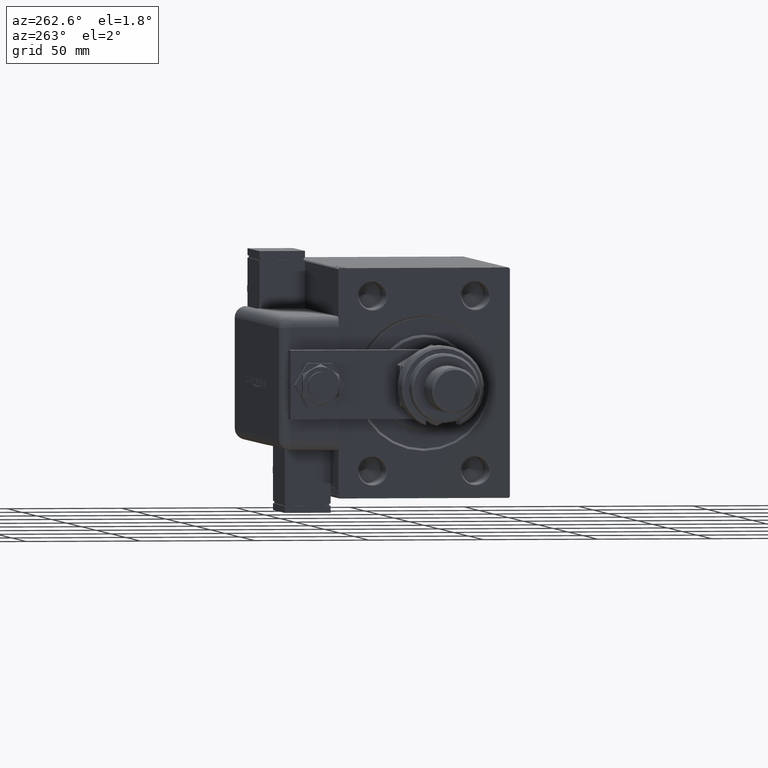
[diagram: clean part render]
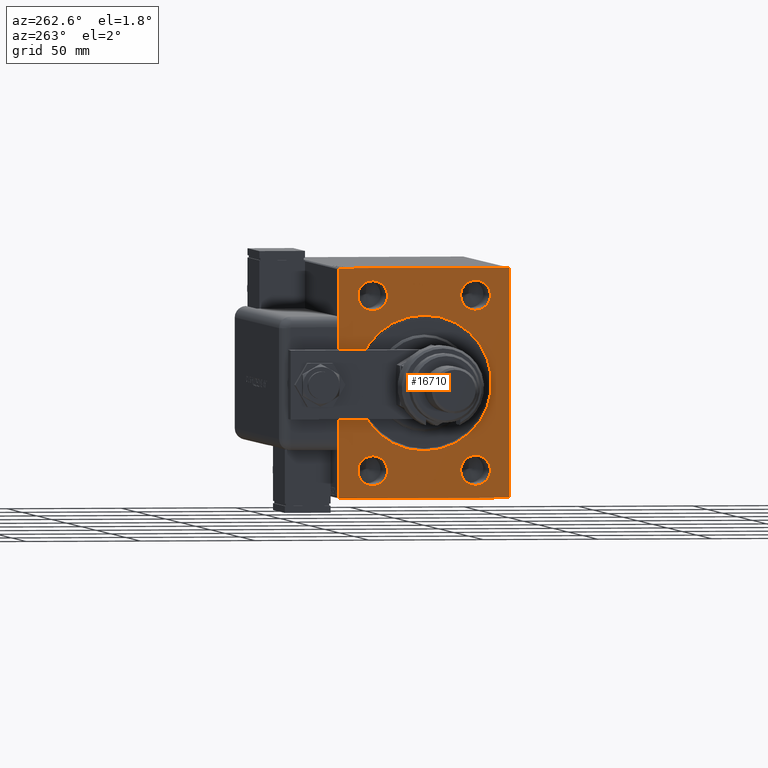
[diagram: same view with one face highlighted and labeled with its STEP entity id]
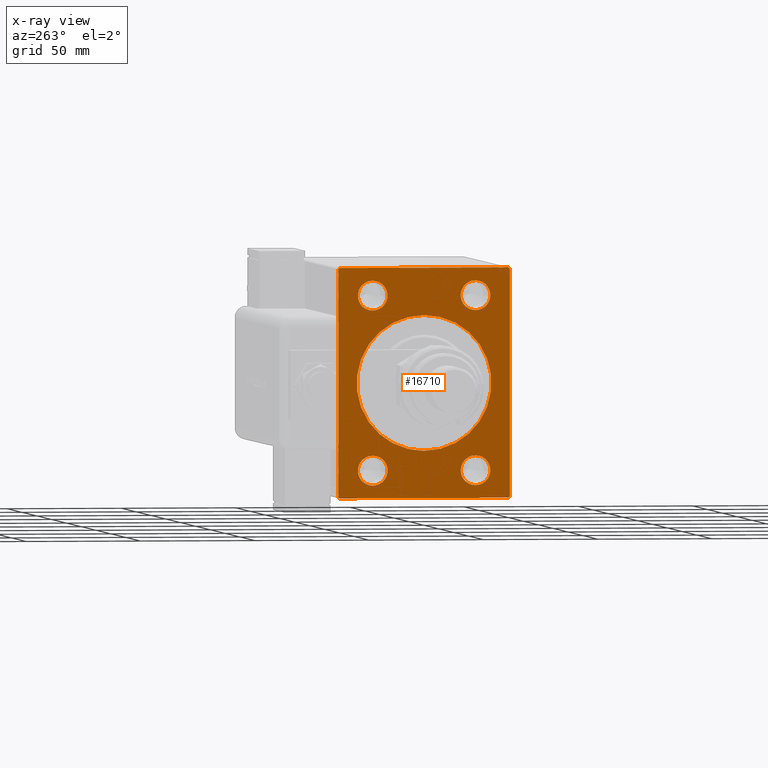
[diagram: x-ray of the same camera — body ghosted, the highlighted face saturated]
A machine part, auxiliary view. The second image highlights one B-rep face of the part: STEP entity #16710.
The next image is the same camera in x-ray: the body ghosted, the highlighted face saturated — about 0% of this face is hidden behind the body in this view.
In plain terms, the highlighted planar face has unit normal (1, 0, 0).
Its self-contained STEP definition (entity closure, byte-faithful):
#592 = VECTOR ( 'NONE', #23178, 1000.000000000000000 ) ;
#1194 = CARTESIAN_POINT ( 'NONE',  ( 0.000000000000000000, -37.50000000000000000, 49.99999999999998579 ) ) ;
#1897 = CARTESIAN_POINT ( 'NONE',  ( 0.000000000000000000, -22.50000000000000000, -31.50000000000000000 ) ) ;
#2077 = ORIENTED_EDGE ( 'NONE', *, *, #51177, .T. ) ;
#2461 = VERTEX_POINT ( 'NONE', #11026 ) ;
#3107 = EDGE_CURVE ( 'NONE', #22739, #49326, #24217, .T. ) ;
#3126 = CARTESIAN_POINT ( 'NONE',  ( 0.000000000000000000, -22.50000000000000000, 37.99999999999999289 ) ) ;
#4232 = ORIENTED_EDGE ( 'NONE', *, *, #54296, .T. ) ;
#4443 = VERTEX_POINT ( 'NONE', #60846 ) ;
#4823 = EDGE_CURVE ( 'NONE', #44282, #43306, #57156, .T. ) ;
#5438 = VERTEX_POINT ( 'NONE', #45120 ) ;
#5454 = CARTESIAN_POINT ( 'NONE',  ( 0.000000000000000000, -22.50000000000000000, -38.00000000000000711 ) ) ;
#5520 = LINE ( 'NONE', #5833, #25838 ) ;
#5833 = CARTESIAN_POINT ( 'NONE',  ( 0.000000000000000000, 37.49999999999999289, 50.00000000000000711 ) ) ;
#6007 = VERTEX_POINT ( 'NONE', #10186 ) ;
#6591 = AXIS2_PLACEMENT_3D ( 'NONE', #33487, #10517, #20094 ) ;
#8284 = EDGE_CURVE ( 'NONE', #52550, #2461, #44867, .T. ) ;
#9456 = ORIENTED_EDGE ( 'NONE', *, *, #23508, .T. ) ;
#10148 = EDGE_CURVE ( 'NONE', #23226, #59065, #51828, .T. ) ;
#10186 = CARTESIAN_POINT ( 'NONE',  ( 0.000000000000000000, 22.50000000000000000, -31.50000000000000000 ) ) ;
#10252 = DIRECTION ( 'NONE',  ( 1.000000000000000000, 0.000000000000000000, 0.000000000000000000 ) ) ;
#10517 = DIRECTION ( 'NONE',  ( 1.000000000000000000, 0.000000000000000000, 0.000000000000000000 ) ) ;
#10546 = DIRECTION ( 'NONE',  ( 1.000000000000000000, 0.000000000000000000, 0.000000000000000000 ) ) ;
#11026 = CARTESIAN_POINT ( 'NONE',  ( 0.000000000000000000, -37.50000000000000000, -49.49999999999997158 ) ) ;
#11789 = VECTOR ( 'NONE', #17654, 1000.000000000000000 ) ;
#12791 = FACE_BOUND ( 'NONE', #43748, .T. ) ;
#12887 = LINE ( 'NONE', #32636, #11789 ) ;
#12990 = VERTEX_POINT ( 'NONE', #37935 ) ;
#13219 = CARTESIAN_POINT ( 'NONE',  ( 0.000000000000000000, 3.612708057484695548E-15, -29.50000000000002842 ) ) ;
#13479 = VECTOR ( 'NONE', #20725, 1000.000000000000000 ) ;
#13566 = CIRCLE ( 'NONE', #49229, 6.500000000000005329 ) ;
#13982 = VERTEX_POINT ( 'NONE', #1897 ) ;
#14044 = PLANE ( 'NONE',  #6591 ) ;
#14244 = CIRCLE ( 'NONE', #22389, 6.500000000000005329 ) ;
#14671 = CARTESIAN_POINT ( 'NONE',  ( 0.000000000000000000, -22.50000000000000000, 37.99999999999999289 ) ) ;
#14911 = EDGE_CURVE ( 'NONE', #23226, #31924, #5520, .T. ) ;
#15608 = CARTESIAN_POINT ( 'NONE',  ( 0.000000000000000000, -37.00000000000000000, -50.00000000000000000 ) ) ;
#15794 = DIRECTION ( 'NONE',  ( 1.000000000000000000, 0.000000000000000000, 0.000000000000000000 ) ) ;
#16229 = DIRECTION ( 'NONE',  ( 0.000000000000000000, 0.000000000000000000, -1.000000000000000000 ) ) ;
#16664 = EDGE_CURVE ( 'NONE', #5438, #21682, #28987, .T. ) ;
#16710 = ADVANCED_FACE ( 'NONE', ( #42426, #12791, #46903, #61900, #57122, #42736 ), #14044, .F. ) ;
#17654 = DIRECTION ( 'NONE',  ( -0.000000000000000000, 0.7071067811865721087, 0.7071067811865230368 ) ) ;
#17917 = CIRCLE ( 'NONE', #51537, 6.500000000000005329 ) ;
#18093 = DIRECTION ( 'NONE',  ( 0.000000000000000000, 0.000000000000000000, -1.000000000000000000 ) ) ;
#18436 = EDGE_CURVE ( 'NONE', #52550, #31924, #12887, .T. ) ;
#19497 = EDGE_LOOP ( 'NONE', ( #44129, #57516 ) ) ;
#19893 = VECTOR ( 'NONE', #34998, 1000.000000000000114 ) ;
#20094 = DIRECTION ( 'NONE',  ( 0.000000000000000000, 0.000000000000000000, -1.000000000000000000 ) ) ;
#20353 = CARTESIAN_POINT ( 'NONE',  ( 0.000000000000000000, -37.00000000000000000, -50.00000000000000000 ) ) ;
#20363 = CARTESIAN_POINT ( 'NONE',  ( 0.000000000000000000, 22.50000000000000000, -38.00000000000000711 ) ) ;
#20725 = DIRECTION ( 'NONE',  ( 0.000000000000000000, -1.387778780781445676E-16, 1.000000000000000000 ) ) ;
#21682 = VERTEX_POINT ( 'NONE', #28130 ) ;
#21708 = ORIENTED_EDGE ( 'NONE', *, *, #30100, .T. ) ;
#22389 = AXIS2_PLACEMENT_3D ( 'NONE', #5454, #10546, #44041 ) ;
#22739 = VERTEX_POINT ( 'NONE', #15608 ) ;
#22758 = EDGE_CURVE ( 'NONE', #13982, #34717, #17917, .T. ) ;
#22969 = DIRECTION ( 'NONE',  ( 0.000000000000000000, 0.000000000000000000, -1.000000000000000000 ) ) ;
#23178 = DIRECTION ( 'NONE',  ( 0.000000000000000000, -0.7071067811865230368, -0.7071067811865721087 ) ) ;
#23226 = VERTEX_POINT ( 'NONE', #59474 ) ;
#23508 = EDGE_CURVE ( 'NONE', #43306, #44282, #32471, .T. ) ;
#23687 = ORIENTED_EDGE ( 'NONE', *, *, #22758, .T. ) ;
#24217 = LINE ( 'NONE', #28361, #26503 ) ;
#25711 = AXIS2_PLACEMENT_3D ( 'NONE', #3126, #51609, #18093 ) ;
#25838 = VECTOR ( 'NONE', #53697, 1000.000000000000000 ) ;
#26503 = VECTOR ( 'NONE', #48458, 1000.000000000000000 ) ;
#26616 = CARTESIAN_POINT ( 'NONE',  ( 0.000000000000000000, 37.50000000000000711, -49.49999999999997158 ) ) ;
#27025 = AXIS2_PLACEMENT_3D ( 'NONE', #14671, #42418, #16229 ) ;
#27676 = CARTESIAN_POINT ( 'NONE',  ( 0.000000000000000000, -22.50000000000000000, -44.50000000000001421 ) ) ;
#27769 = CIRCLE ( 'NONE', #25711, 6.500000000000005329 ) ;
#28130 = CARTESIAN_POINT ( 'NONE',  ( 0.000000000000000000, 22.50000000000000000, 44.50000000000000000 ) ) ;
#28146 = CARTESIAN_POINT ( 'NONE',  ( 0.000000000000000000, -36.99999999999996447, 49.99999999999998579 ) ) ;
#28361 = CARTESIAN_POINT ( 'NONE',  ( 0.000000000000000000, -37.50000000000000000, -50.00000000000000000 ) ) ;
#28659 = EDGE_CURVE ( 'NONE', #51820, #59065, #45588, .T. ) ;
#28932 = CIRCLE ( 'NONE', #27025, 6.500000000000005329 ) ;
#28987 = CIRCLE ( 'NONE', #38122, 6.500000000000005329 ) ;
#29922 = DIRECTION ( 'NONE',  ( 0.000000000000000000, 0.000000000000000000, -1.000000000000000000 ) ) ;
#30100 = EDGE_CURVE ( 'NONE', #36374, #4443, #27769, .T. ) ;
#30536 = CARTESIAN_POINT ( 'NONE',  ( 0.000000000000000000, -22.50000000000000000, 31.49999999999998579 ) ) ;
#31544 = EDGE_CURVE ( 'NONE', #21682, #5438, #13566, .T. ) ;
#31710 = ORIENTED_EDGE ( 'NONE', *, *, #10148, .T. ) ;
#31924 = VERTEX_POINT ( 'NONE', #28146 ) ;
#32363 = DIRECTION ( 'NONE',  ( -0.000000000000000000, 0.7071067811865425767, -0.7071067811865525687 ) ) ;
#32414 = ORIENTED_EDGE ( 'NONE', *, *, #14911, .F. ) ;
#32471 = CIRCLE ( 'NONE', #62897, 29.50000000000002842 ) ;
#32636 = CARTESIAN_POINT ( 'NONE',  ( 0.000000000000000000, -37.50000000000000000, 49.49999999999998579 ) ) ;
#32751 = CARTESIAN_POINT ( 'NONE',  ( 0.000000000000000000, 37.50000000000000711, -49.49999999999997158 ) ) ;
#33487 = CARTESIAN_POINT ( 'NONE',  ( 0.000000000000000000, 0.000000000000000000, 0.000000000000000000 ) ) ;
#34221 = ORIENTED_EDGE ( 'NONE', *, *, #59328, .T. ) ;
#34710 = ORIENTED_EDGE ( 'NONE', *, *, #18436, .T. ) ;
#34717 = VERTEX_POINT ( 'NONE', #27676 ) ;
#34998 = DIRECTION ( 'NONE',  ( -0.000000000000000000, -0.7071067811865474617, 0.7071067811865474617 ) ) ;
#35220 = CARTESIAN_POINT ( 'NONE',  ( 0.000000000000000000, -37.50000000000000000, 49.49999999999998579 ) ) ;
#35805 = ORIENTED_EDGE ( 'NONE', *, *, #4823, .T. ) ;
#36374 = VERTEX_POINT ( 'NONE', #30536 ) ;
#37432 = ORIENTED_EDGE ( 'NONE', *, *, #58144, .T. ) ;
#37452 = CARTESIAN_POINT ( 'NONE',  ( 0.000000000000000000, 36.99999999999999289, 50.00000000000000711 ) ) ;
#37935 = CARTESIAN_POINT ( 'NONE',  ( 0.000000000000000000, 22.50000000000000000, -44.50000000000001421 ) ) ;
#37946 = CARTESIAN_POINT ( 'NONE',  ( 0.000000000000000000, 22.50000000000000000, 37.99999999999999289 ) ) ;
#38064 = CARTESIAN_POINT ( 'NONE',  ( 0.000000000000000000, 0.000000000000000000, 29.50000000000002842 ) ) ;
#38095 = DIRECTION ( 'NONE',  ( 1.000000000000000000, 0.000000000000000000, 0.000000000000000000 ) ) ;
#38122 = AXIS2_PLACEMENT_3D ( 'NONE', #37946, #57431, #22969 ) ;
#38737 = CARTESIAN_POINT ( 'NONE',  ( 0.000000000000000000, 22.50000000000000000, 37.99999999999999289 ) ) ;
#39489 = ORIENTED_EDGE ( 'NONE', *, *, #46572, .T. ) ;
#40147 = DIRECTION ( 'NONE',  ( 0.000000000000000000, 0.000000000000000000, -1.000000000000000000 ) ) ;
#40505 = CARTESIAN_POINT ( 'NONE',  ( 0.000000000000000000, 0.000000000000000000, 0.000000000000000000 ) ) ;
#40902 = CARTESIAN_POINT ( 'NONE',  ( 0.000000000000000000, 37.49999999999999289, 49.50000000000000000 ) ) ;
#41153 = EDGE_LOOP ( 'NONE', ( #35805, #9456 ) ) ;
#41391 = DIRECTION ( 'NONE',  ( 0.000000000000000000, 0.000000000000000000, -1.000000000000000000 ) ) ;
#42418 = DIRECTION ( 'NONE',  ( 1.000000000000000000, 0.000000000000000000, 0.000000000000000000 ) ) ;
#42426 = FACE_BOUND ( 'NONE', #41153, .T. ) ;
#42736 = FACE_OUTER_BOUND ( 'NONE', #47537, .T. ) ;
#42948 = LINE ( 'NONE', #32751, #592 ) ;
#43306 = VERTEX_POINT ( 'NONE', #13219 ) ;
#43748 = EDGE_LOOP ( 'NONE', ( #23687, #2077 ) ) ;
#44041 = DIRECTION ( 'NONE',  ( 0.000000000000000000, 0.000000000000000000, -1.000000000000000000 ) ) ;
#44129 = ORIENTED_EDGE ( 'NONE', *, *, #31544, .T. ) ;
#44282 = VERTEX_POINT ( 'NONE', #38064 ) ;
#44571 = ORIENTED_EDGE ( 'NONE', *, *, #3107, .F. ) ;
#44578 = LINE ( 'NONE', #20353, #19893 ) ;
#44867 = LINE ( 'NONE', #1194, #46072 ) ;
#45120 = CARTESIAN_POINT ( 'NONE',  ( 0.000000000000000000, 22.50000000000000000, 31.49999999999998579 ) ) ;
#45273 = CARTESIAN_POINT ( 'NONE',  ( 0.000000000000000000, 37.50000000000000711, -50.00000000000000000 ) ) ;
#45588 = LINE ( 'NONE', #45273, #13479 ) ;
#45937 = AXIS2_PLACEMENT_3D ( 'NONE', #40505, #10252, #55196 ) ;
#46072 = VECTOR ( 'NONE', #54779, 1000.000000000000000 ) ;
#46572 = EDGE_CURVE ( 'NONE', #12990, #6007, #52763, .T. ) ;
#46903 = FACE_BOUND ( 'NONE', #57858, .T. ) ;
#47537 = EDGE_LOOP ( 'NONE', ( #59443, #34710, #32414, #31710, #62666, #34221, #44571, #4232 ) ) ;
#48059 = VECTOR ( 'NONE', #32363, 999.9999999999998863 ) ;
#48458 = DIRECTION ( 'NONE',  ( 0.000000000000000000, 1.000000000000000000, 0.000000000000000000 ) ) ;
#49117 = DIRECTION ( 'NONE',  ( 1.000000000000000000, 0.000000000000000000, 0.000000000000000000 ) ) ;
#49229 = AXIS2_PLACEMENT_3D ( 'NONE', #38737, #38095, #57270 ) ;
#49326 = VERTEX_POINT ( 'NONE', #52571 ) ;
#49918 = DIRECTION ( 'NONE',  ( 0.000000000000000000, 0.000000000000000000, -1.000000000000000000 ) ) ;
#51177 = EDGE_CURVE ( 'NONE', #34717, #13982, #14244, .T. ) ;
#51488 = AXIS2_PLACEMENT_3D ( 'NONE', #20363, #58035, #29922 ) ;
#51537 = AXIS2_PLACEMENT_3D ( 'NONE', #55157, #49117, #40147 ) ;
#51609 = DIRECTION ( 'NONE',  ( 1.000000000000000000, 0.000000000000000000, 0.000000000000000000 ) ) ;
#51820 = VERTEX_POINT ( 'NONE', #26616 ) ;
#51828 = LINE ( 'NONE', #37452, #48059 ) ;
#52473 = CIRCLE ( 'NONE', #51488, 6.500000000000005329 ) ;
#52550 = VERTEX_POINT ( 'NONE', #35220 ) ;
#52571 = CARTESIAN_POINT ( 'NONE',  ( 0.000000000000000000, 37.00000000000001421, -50.00000000000000000 ) ) ;
#52763 = CIRCLE ( 'NONE', #56875, 6.500000000000005329 ) ;
#53697 = DIRECTION ( 'NONE',  ( 0.000000000000000000, -1.000000000000000000, -2.775557561562891844E-16 ) ) ;
#54296 = EDGE_CURVE ( 'NONE', #22739, #2461, #44578, .T. ) ;
#54779 = DIRECTION ( 'NONE',  ( 0.000000000000000000, 0.000000000000000000, -1.000000000000000000 ) ) ;
#55157 = CARTESIAN_POINT ( 'NONE',  ( 0.000000000000000000, -22.50000000000000000, -38.00000000000000711 ) ) ;
#55196 = DIRECTION ( 'NONE',  ( 0.000000000000000000, 0.000000000000000000, -1.000000000000000000 ) ) ;
#55311 = EDGE_CURVE ( 'NONE', #4443, #36374, #28932, .T. ) ;
#55766 = CARTESIAN_POINT ( 'NONE',  ( 0.000000000000000000, 0.000000000000000000, 0.000000000000000000 ) ) ;
#55988 = CARTESIAN_POINT ( 'NONE',  ( 0.000000000000000000, 22.50000000000000000, -38.00000000000000711 ) ) ;
#56843 = EDGE_LOOP ( 'NONE', ( #37432, #39489 ) ) ;
#56875 = AXIS2_PLACEMENT_3D ( 'NONE', #55988, #15794, #49918 ) ;
#57122 = FACE_BOUND ( 'NONE', #56843, .T. ) ;
#57156 = CIRCLE ( 'NONE', #45937, 29.50000000000002842 ) ;
#57270 = DIRECTION ( 'NONE',  ( 0.000000000000000000, 0.000000000000000000, -1.000000000000000000 ) ) ;
#57431 = DIRECTION ( 'NONE',  ( 1.000000000000000000, 0.000000000000000000, 0.000000000000000000 ) ) ;
#57516 = ORIENTED_EDGE ( 'NONE', *, *, #16664, .T. ) ;
#57858 = EDGE_LOOP ( 'NONE', ( #60721, #21708 ) ) ;
#58035 = DIRECTION ( 'NONE',  ( 1.000000000000000000, 0.000000000000000000, 0.000000000000000000 ) ) ;
#58144 = EDGE_CURVE ( 'NONE', #6007, #12990, #52473, .T. ) ;
#59065 = VERTEX_POINT ( 'NONE', #40902 ) ;
#59328 = EDGE_CURVE ( 'NONE', #51820, #49326, #42948, .T. ) ;
#59443 = ORIENTED_EDGE ( 'NONE', *, *, #8284, .F. ) ;
#59474 = CARTESIAN_POINT ( 'NONE',  ( 0.000000000000000000, 36.99999999999999289, 50.00000000000000711 ) ) ;
#59915 = DIRECTION ( 'NONE',  ( 1.000000000000000000, 0.000000000000000000, 0.000000000000000000 ) ) ;
#60721 = ORIENTED_EDGE ( 'NONE', *, *, #55311, .T. ) ;
#60846 = CARTESIAN_POINT ( 'NONE',  ( 0.000000000000000000, -22.50000000000000000, 44.50000000000000000 ) ) ;
#61900 = FACE_BOUND ( 'NONE', #19497, .T. ) ;
#62666 = ORIENTED_EDGE ( 'NONE', *, *, #28659, .F. ) ;
#62897 = AXIS2_PLACEMENT_3D ( 'NONE', #55766, #59915, #41391 ) ;